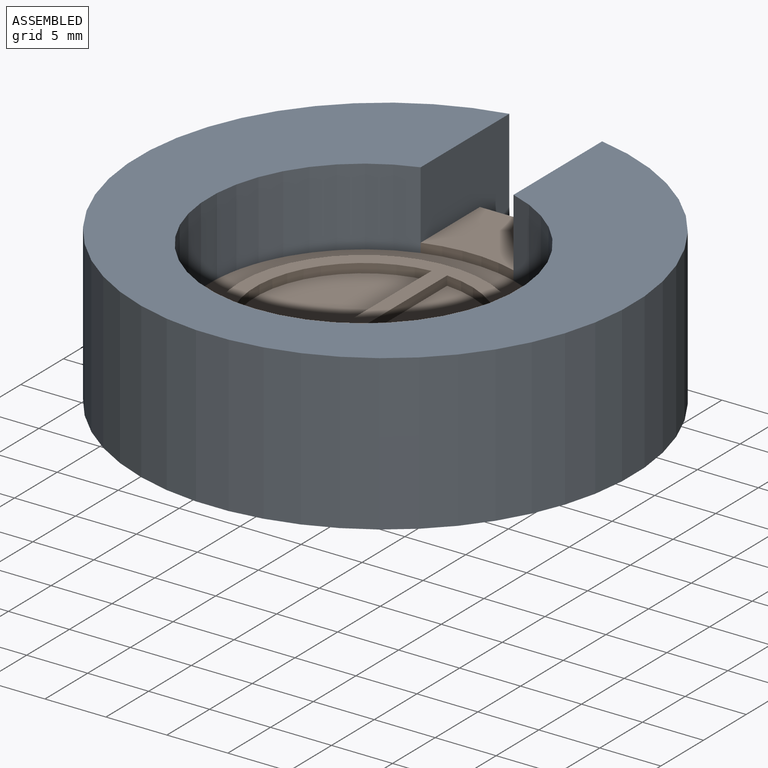
[diagram: assembled view]
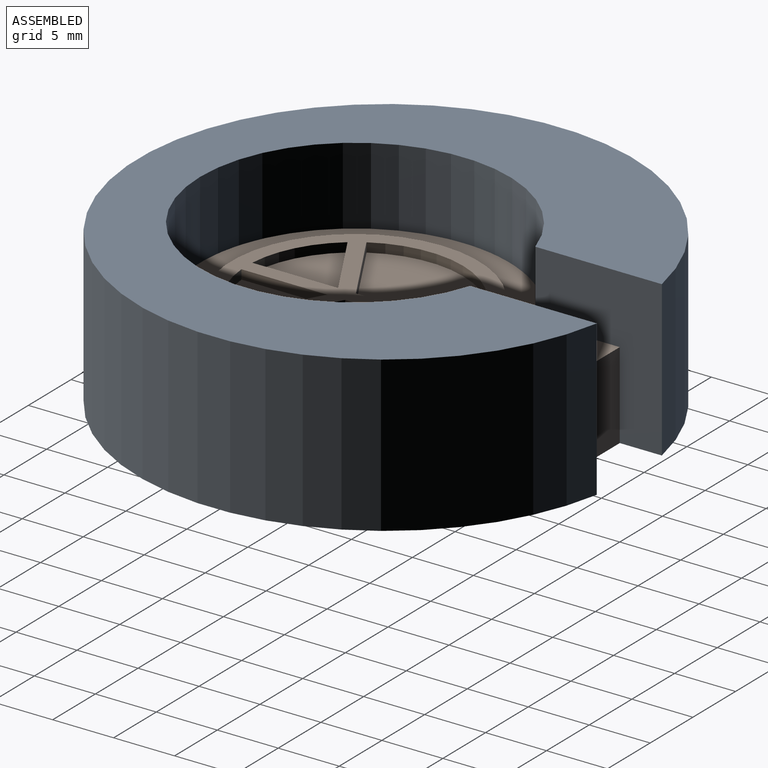
[diagram: assembled view, second angle]
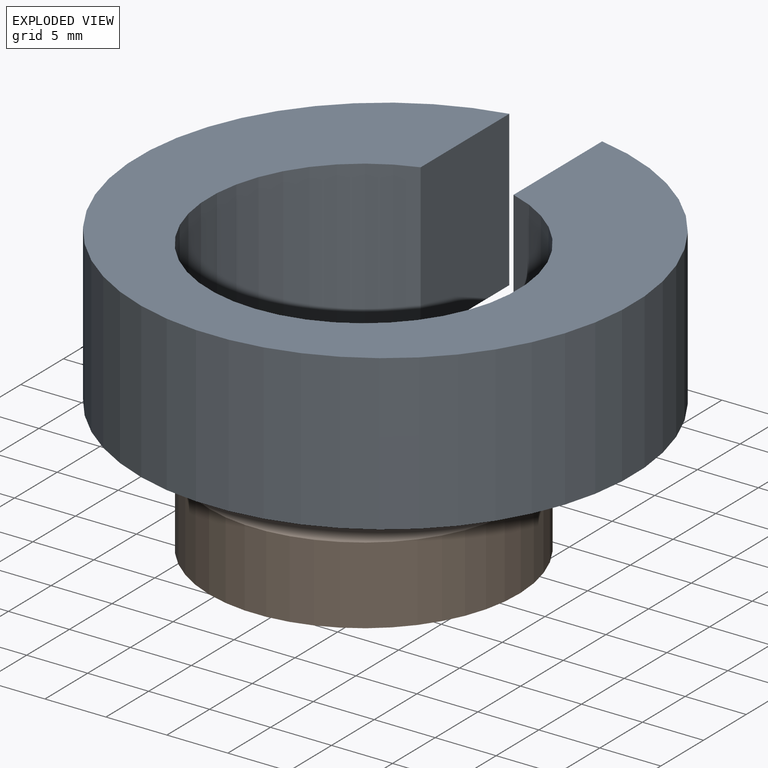
[diagram: exploded view]
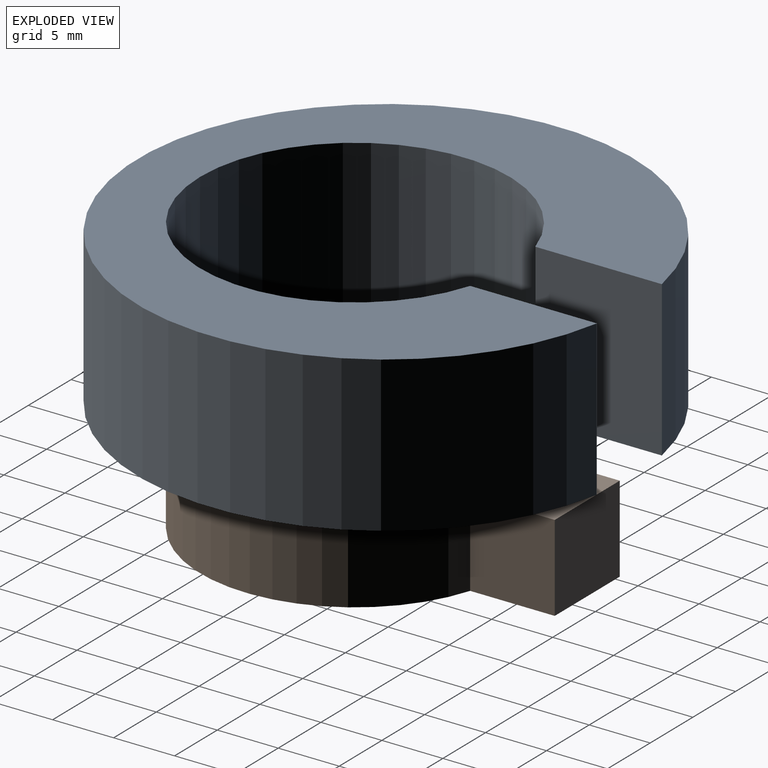
[diagram: exploded view, second angle]
ASSEMBLY  parts=2 mates=2
PART A: 6 faces, bbox 40.6x40.3x12.7 mm
  f0: plane 12.7x10.38mm, normal (-1,0,0), area 131.9mm2, adj f1,f3,f4,f5
  f1: cylinder r=12.7mm len=25.4mm, axis (0,0,-1), area 915.1mm2, adj f0,f2,f4,f5
  f2: plane 12.7x10.38mm, normal (1,0,0), area 131.9mm2, adj f1,f3,f4,f5
  f3: cylinder r=20.32mm len=40.64mm, axis (0,0,-1), area 1524.1mm2, adj f0,f2,f4,f5
  f4: plane 40.64x40.28mm, normal (0,0,1), area 712.5mm2, adj f0,f1,f2,f3
  f5: plane 40.64x40.28mm, normal (0,0,-1), area 712.5mm2, adj f0,f1,f2,f3
PART B: 26 faces, bbox 25.4x31.8x7.1 mm
  f0: plane 25.4x25.4mm, normal (0,0,1), area 182.4mm2, adj f3,f6,f16
  f1: plane 7.62x7.11mm, normal (0,1,0), area 54.2mm2, adj f2,f4,f5,f7
  f2: plane 7.11x6.94mm, normal (-1,0,0), area 49.3mm2, adj f1,f3,f5,f6,f7
  f3: cylinder r=12.7mm len=25.4mm, axis (0,0,1), area 457.6mm2, adj f0,f2,f4,f5
  f4: plane 7.11x6.94mm, normal (1,0,0), area 49.3mm2, adj f1,f3,f5,f6,f7
  f5: plane 31.75x25.4mm, normal (0,0,-1), area 556.6mm2, adj f1,f2,f3,f4
  f6: cylinder r=12.7mm len=7.62mm, axis (0,0,-1), area 5.9mm2, adj f0,f2,f4,f7
  f7: plane 7.62x6.94mm, normal (0,0,1), area 49.9mm2, adj f1,f2,f4,f6
  f8: plane 7.03x0.76mm, normal (1,0,0), area 5.4mm2, adj f9,f20,f21,f22
  f9: plane 6.35x3.67mm, normal (-0.5,-0.87,0), area 5.6mm2, adj f8,f20,f21,f22
  f10: cylinder r=8.89mm len=13.31mm, axis (0,0,-1), area 13.7mm2, adj f11,f17,f21,f25
  f11: plane 9.23x0.76mm, normal (-1,0,0), area 7mm2, adj f10,f17,f21,f25
  f12: plane 6.35x3.67mm, normal (0.5,-0.87,0), area 5.6mm2, adj f13,f18,f21,f24
  f13: plane 7.03x0.76mm, normal (-1,0,0), area 5.4mm2, adj f12,f18,f21,f24
  f14: plane 9.23x0.76mm, normal (1,0,0), area 7mm2, adj f15,f19,f21,f23
  f15: cylinder r=8.89mm len=13.31mm, axis (0,0,-1), area 13.7mm2, adj f14,f19,f21,f23
  f16: cylinder r=10.16mm len=20.32mm, axis (0,0,-1), area 48.6mm2, adj f0,f21
  f17: plane 7.06x4.08mm, normal (-0.5,0.87,0), area 6.2mm2, adj f10,f11,f21,f25
  f18: cylinder r=8.89mm len=6.35mm, axis (0,0,-1), area 5.6mm2, adj f12,f13,f21,f24
  f19: plane 7.06x4.08mm, normal (0.5,0.87,0), area 6.2mm2, adj f14,f15,f21,f23
  f20: cylinder r=8.89mm len=6.35mm, axis (0,0,-1), area 5.6mm2, adj f8,f9,f21,f22
  f21: plane 20.32x20.32mm, normal (0,0,1), area 118.3mm2, adj f8,f9,f10,f11,f12,f13,f14,f15
  f22: plane 7.03x6.35mm, normal (0,0,1), area 26mm2, adj f8,f9,f20
  f23: plane 13.31x8.26mm, normal (0,0,1), area 77mm2, adj f14,f15,f19
  f24: plane 7.03x6.35mm, normal (0,0,1), area 26mm2, adj f12,f13,f18
  f25: plane 13.31x8.26mm, normal (0,0,1), area 77mm2, adj f10,f11,f17
PLACE A t=(-0.05,0.26,-24.87)mm
PLACE B t=(-0.05,-1.3,-18.52)mm
MATE slider A.f1 <-> B.f3  axis (0,0,-1) through (-0.05,0.26,-24.87)mm
MATE planar A.f5 <-> B.f5  axis (0,0,-1) through (-0.05,2.95,-24.87)mm
